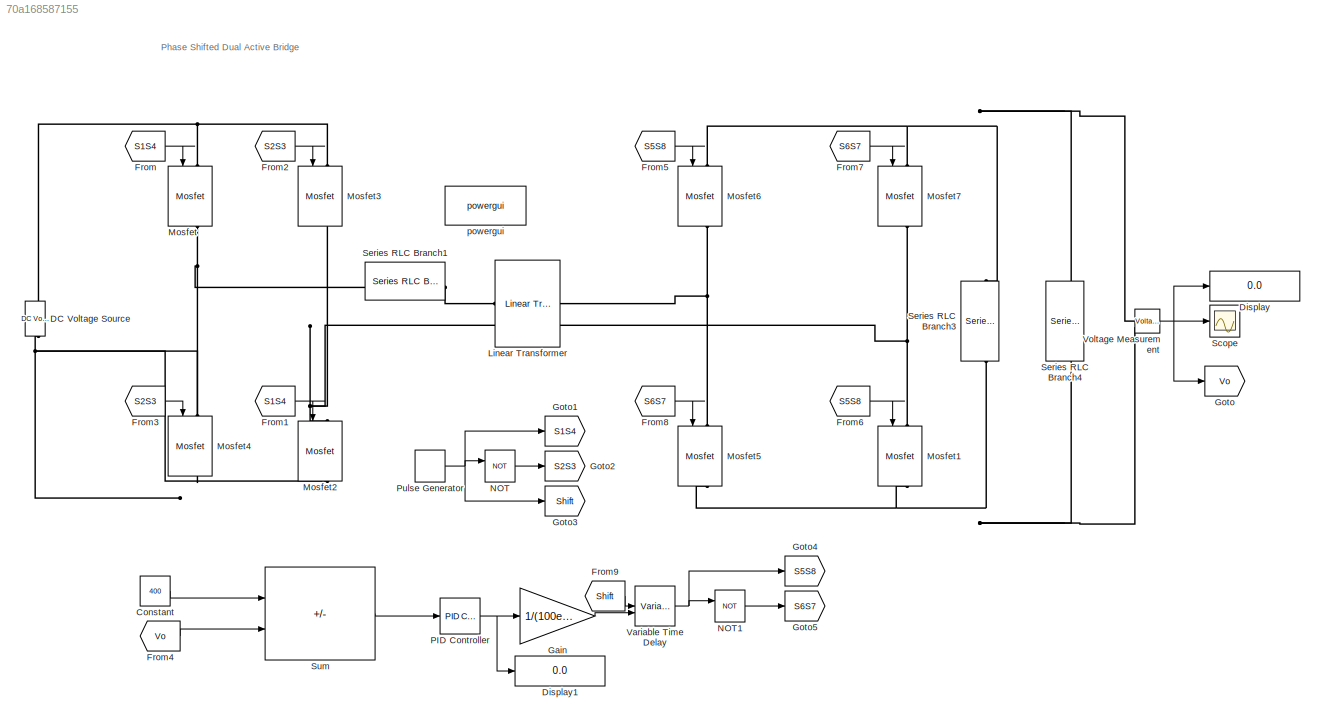
MODEL slx_70a168587155
KIND model
CONFIG AbsTol = auto
CONFIG EnableMultiTasking = off
CONFIG FixedStep = auto
CONFIG MaxStep = 1e-4
CONFIG MinStep = auto
CONFIG RelTol = 1e-3
CONFIG SampleTimeConstraint = Unconstrained
CONFIG SolverName = ode23tb
CONFIG StartTime = 0.0
CONFIG StopTime = 1
BLOCK [Constant] Constant
  Value = 400
BLOCK [Reference] DC Voltage Source  REF=spsDCVoltageSourceLib/DC Voltage Source
  LibrarySourceBlock = sps_lib/Sources/DC Voltage Source
  SourceBlock = spsDCVoltageSourceLib/DC Voltage Source
  SourceType = DC Voltage Source
BLOCK [Display] Display
  Decimation = 1
BLOCK [Display] Display1
  Decimation = 1
BLOCK [From] From
  GotoTag = S1S4
BLOCK [From] From1
  GotoTag = S1S4
BLOCK [From] From2
  GotoTag = S2S3
BLOCK [From] From3
  GotoTag = S2S3
BLOCK [From] From4
  GotoTag = Vo
BLOCK [From] From5
  GotoTag = S5S8
BLOCK [From] From6
  GotoTag = S5S8
BLOCK [From] From7
  GotoTag = S6S7
BLOCK [From] From8
  GotoTag = S6S7
BLOCK [From] From9
  GotoTag = Shift
BLOCK [Gain] Gain
  Gain = 1/(100e3)
BLOCK [Goto] Goto
  GotoTag = Vo
BLOCK [Goto] Goto1
  GotoTag = S1S4
BLOCK [Goto] Goto2
  GotoTag = S2S3
BLOCK [Goto] Goto3
  GotoTag = Shift
BLOCK [Goto] Goto4
  GotoTag = S5S8
BLOCK [Goto] Goto5
  GotoTag = S6S7
BLOCK [Reference] Linear Transformer  REF=spsLinearTransformerLib/Linear Transformer
  LibrarySourceBlock = sps_lib/Power Grid Elements/Linear Transformer
  SourceBlock = spsLinearTransformerLib/Linear Transformer
  SourceType = Linear Transformer
BLOCK [Reference] Mosfet  REF=spsMosfetLib/Mosfet
  LibrarySourceBlock = sps_lib/Power Electronics/Mosfet
  NameLocation = left
  SourceBlock = spsMosfetLib/Mosfet
  SourceType = Mosfet
BLOCK [Reference] Mosfet1  REF=spsMosfetLib/Mosfet
  LibrarySourceBlock = sps_lib/Power Electronics/Mosfet
  NameLocation = left
  SourceBlock = spsMosfetLib/Mosfet
  SourceType = Mosfet
BLOCK [Reference] Mosfet2  REF=spsMosfetLib/Mosfet
  LibrarySourceBlock = sps_lib/Power Electronics/Mosfet
  NameLocation = left
  SourceBlock = spsMosfetLib/Mosfet
  SourceType = Mosfet
BLOCK [Reference] Mosfet3  REF=spsMosfetLib/Mosfet
  LibrarySourceBlock = sps_lib/Power Electronics/Mosfet
  NameLocation = left
  SourceBlock = spsMosfetLib/Mosfet
  SourceType = Mosfet
BLOCK [Reference] Mosfet4  REF=spsMosfetLib/Mosfet
  LibrarySourceBlock = sps_lib/Power Electronics/Mosfet
  NameLocation = left
  SourceBlock = spsMosfetLib/Mosfet
  SourceType = Mosfet
BLOCK [Reference] Mosfet5  REF=spsMosfetLib/Mosfet
  LibrarySourceBlock = sps_lib/Power Electronics/Mosfet
  NameLocation = left
  SourceBlock = spsMosfetLib/Mosfet
  SourceType = Mosfet
BLOCK [Reference] Mosfet6  REF=spsMosfetLib/Mosfet
  LibrarySourceBlock = sps_lib/Power Electronics/Mosfet
  NameLocation = left
  SourceBlock = spsMosfetLib/Mosfet
  SourceType = Mosfet
BLOCK [Reference] Mosfet7  REF=spsMosfetLib/Mosfet
  LibrarySourceBlock = sps_lib/Power Electronics/Mosfet
  NameLocation = left
  SourceBlock = spsMosfetLib/Mosfet
  SourceType = Mosfet
BLOCK [Logic] NOT
  AllPortsSameDT = off
  Operator = NOT
  OutDataTypeStr = boolean
BLOCK [Logic] NOT1
  AllPortsSameDT = off
  Operator = NOT
  OutDataTypeStr = boolean
BLOCK [Reference] PID Controller  REF=slpidlib/PID Controller
  LibrarySourceBlock = simulink/Continuous/PID Controller
  SourceBlock = slpidlib/PID Controller
  SourceType = PID 1dof
BLOCK [DiscretePulseGenerator] Pulse Generator
  Period = 1/(100e3)
  PulseType = Time based
  PulseWidth = 50
BLOCK [Scope] Scope
  Floating = off
  NumInputPorts = 1
  ScopeSpecificationString = Simulink.scopes.TimeScopeBlockCfg('CurrentConfiguration', extmgr.ConfigurationSet(extmgr.Configuration('Core','General UI',true,'FigureColor',[0 0 0]),extmgr.Configuration('Core','Source UI',true),extmgr.Configuration('Sources','WiredSimulink',true,'DataLoggingVariableName','ScopeData1'),extmgr.Configuration('Visuals','Time Domain',true,'SerializedDisplays',{struct('MinYLimReal','-64.69648','MaxYL...<+1479ch>
BLOCK [Reference] Series RLC Branch1  REF=spsSeriesRLCBranchLib/Series RLC Branch
  LibrarySourceBlock = sps_lib/Passives/Series RLC Branch
  SourceBlock = spsSeriesRLCBranchLib/Series RLC Branch
  SourceType = Series RLC Branch
BLOCK [Reference] Series RLC Branch3  REF=spsSeriesRLCBranchLib/Series RLC Branch
  LibrarySourceBlock = sps_lib/Passives/Series RLC Branch
  NameLocation = left
  SourceBlock = spsSeriesRLCBranchLib/Series RLC Branch
  SourceType = Series RLC Branch
BLOCK [Reference] Series RLC Branch4  REF=spsSeriesRLCBranchLib/Series RLC Branch
  LibrarySourceBlock = sps_lib/Passives/Series RLC Branch
  NameLocation = left
  SourceBlock = spsSeriesRLCBranchLib/Series RLC Branch
  SourceType = Series RLC Branch
BLOCK [Sum] Sum
  IconShape = rectangular
  Inputs = +-
BLOCK [VariableTransportDelay] Variable Time Delay
  MaximumDelay = 10
BLOCK [Reference] Voltage Measurement  REF=spsVoltageMeasurementLib/Voltage Measurement
  LibrarySourceBlock = sps_lib/Sensors and Measurements/Voltage Measurement
  SourceBlock = spsVoltageMeasurementLib/Voltage Measurement
  SourceType = Voltage Measurement
  UserDataPersistent = on
BLOCK [Reference] powergui  REF=spspowerguiLib/powergui
  Priority = 1
  SourceBlock = spspowerguiLib/powergui
  SourceType = PSB option menu block
ANNOTATION (root): Phase Shifted Dual Active Bridge
LINE Constant:1 -> Sum:1
LINE From1:1 -> Mosfet2:1
LINE From2:1 -> Mosfet3:1
LINE From3:1 -> Mosfet4:1
LINE From4:1 -> Sum:2
LINE From5:1 -> Mosfet6:1
LINE From6:1 -> Mosfet1:1
LINE From7:1 -> Mosfet7:1
LINE From8:1 -> Mosfet5:1
LINE From9:1 -> Variable Time Delay:1
LINE From:1 -> Mosfet:1
LINE Gain:1 -> Variable Time Delay:2
LINE NOT1:1 -> Goto5:1
LINE NOT:1 -> Goto2:1
NET PID Controller:1 -> Display1:1, Gain:1
NET Pulse Generator:1 -> Goto1:1, Goto3:1, NOT:1
LINE Sum:1 -> PID Controller:1
NET Variable Time Delay:1 -> Goto4:1, NOT1:1
NET Voltage Measurement:1 -> Display:1, Goto:1, Scope:1
PNET net1: DC Voltage Source:LConn1 -- Mosfet2:RConn1 -- Mosfet4:RConn1
PNET net2: DC Voltage Source:RConn1 -- Mosfet3:LConn1 -- Mosfet:LConn1
PLINE Linear Transformer:LConn1 -- Series RLC Branch1:RConn1
PNET net3: Linear Transformer:LConn2 -- Mosfet2:LConn1 -- Mosfet3:RConn1
PNET net4: Linear Transformer:RConn1 -- Mosfet5:LConn1 -- Mosfet6:RConn1
PNET net5: Linear Transformer:RConn2 -- Mosfet1:LConn1 -- Mosfet7:RConn1
PNET net6: Mosfet1:RConn1 -- Mosfet5:RConn1 -- Series RLC Branch3:RConn1 -- Series RLC Branch4:RConn1 -- Voltage Measurement:LConn2
PNET net7: Mosfet4:LConn1 -- Mosfet:RConn1 -- Series RLC Branch1:LConn1
PNET net8: Mosfet6:LConn1 -- Mosfet7:LConn1 -- Series RLC Branch3:LConn1 -- Series RLC Branch4:LConn1 -- Voltage Measurement:LConn1
note: NET lines group one-source signal fan-out (src -> all destinations, sorted); 1:1 wires keep LINE; PNET lines group multi-terminal physical nets as a canonical sorted terminal list (undirected conserving connections); 2-terminal nets keep the pairwise PLINE form
